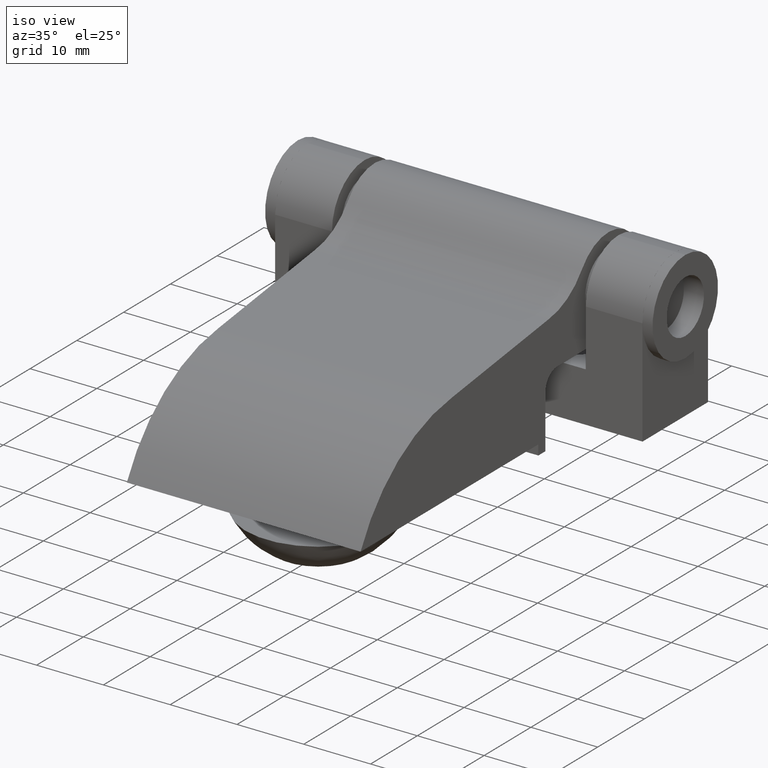
[diagram: clean part render]
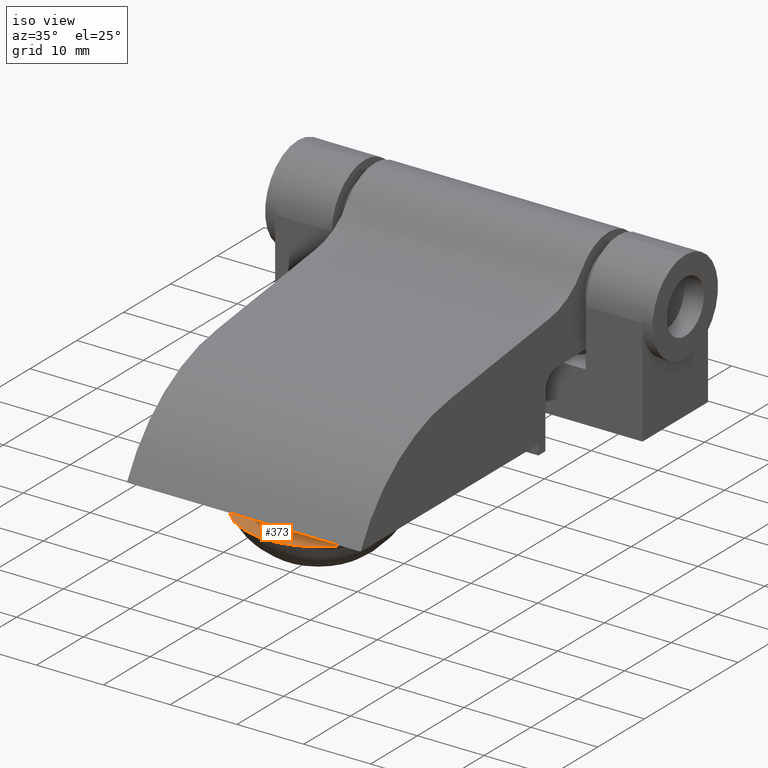
[diagram: same view with one face highlighted and labeled with its STEP entity id]
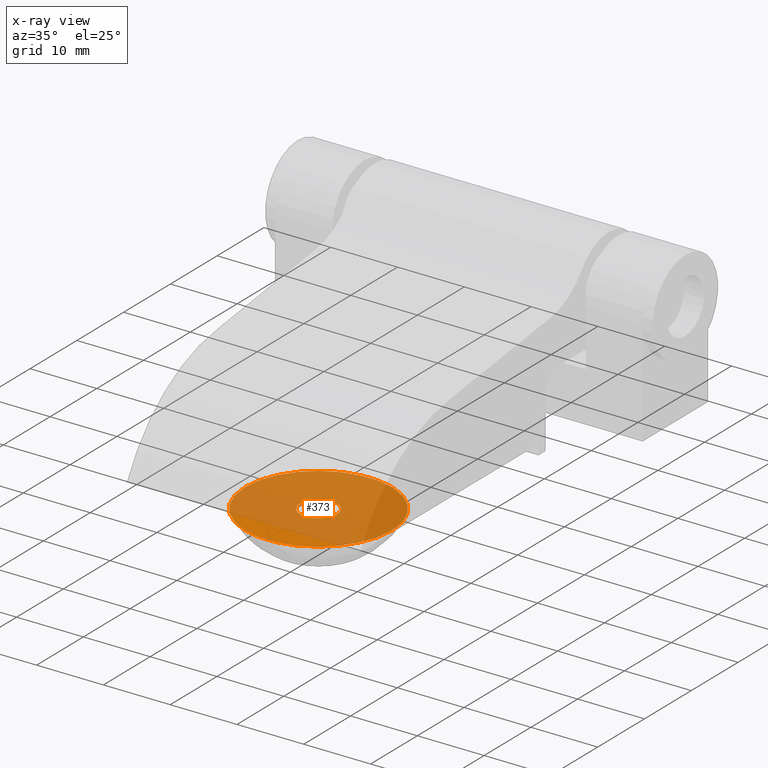
[diagram: x-ray of the same camera — body ghosted, the highlighted face saturated]
A machine part, iso view. The second image highlights one B-rep face of the part: STEP entity #373.
The next image is the same camera in x-ray: the body ghosted, the highlighted face saturated — about 88% of this face is hidden behind the body in this view.
In plain terms, the highlighted planar face has unit normal (0, 0, 1).
Its self-contained STEP definition (entity closure, byte-faithful):
#328=CARTESIAN_POINT('',(-22.0,-21.999999999987608,-4.999999999980672));
#329=DIRECTION('',(0.0,0.0,1.0));
#330=DIRECTION('',(0.0,-1.0,0.0));
#331=AXIS2_PLACEMENT_3D('',#328,#329,#330);
#332=PLANE('',#331);
#333=CARTESIAN_POINT('',(-10.999999999994657,-43.999999999987608,-4.999999999990902));
#334=VERTEX_POINT('',#333);
#335=CARTESIAN_POINT('',(10.999999999994657,-43.999999999987608,-4.999999999990902));
#336=VERTEX_POINT('',#335);
#337=CARTESIAN_POINT('',(0.0,-43.999999999987608,-4.999999999990902));
#338=DIRECTION('',(0.0,-1.836970E-016,-1.0));
#339=DIRECTION('',(1.0,0.0,0.0));
#340=AXIS2_PLACEMENT_3D('',#337,#338,#339);
#341=CIRCLE('',#340,10.999999999994657);
#342=EDGE_CURVE('',#334,#336,#341,.T.);
#343=ORIENTED_EDGE('',*,*,#342,.F.);
#344=CARTESIAN_POINT('',(0.0,-43.999999999987608,-4.999999999990902));
#345=DIRECTION('',(0.0,-1.836970E-016,-1.0));
#346=DIRECTION('',(1.0,0.0,0.0));
#347=AXIS2_PLACEMENT_3D('',#344,#345,#346);
#348=CIRCLE('',#347,10.999999999994657);
#349=EDGE_CURVE('',#336,#334,#348,.T.);
#350=ORIENTED_EDGE('',*,*,#349,.F.);
#351=EDGE_LOOP('',(#343,#350));
#352=FACE_OUTER_BOUND('',#351,.T.);
#353=CARTESIAN_POINT('',(2.749999999999886,-43.999999999987608,-4.999999999980671));
#354=VERTEX_POINT('',#353);
#355=CARTESIAN_POINT('',(-2.749999999999886,-43.999999999987608,-4.999999999980671));
#356=VERTEX_POINT('',#355);
#357=CARTESIAN_POINT('',(0.0,-43.999999999987608,-4.999999999980671));
#358=DIRECTION('',(0.0,-1.836970E-016,-1.0));
#359=DIRECTION('',(1.0,0.0,0.0));
#360=AXIS2_PLACEMENT_3D('',#357,#358,#359);
#361=CIRCLE('',#360,2.749999999999886);
#362=EDGE_CURVE('',#354,#356,#361,.T.);
#363=ORIENTED_EDGE('',*,*,#362,.T.);
#364=CARTESIAN_POINT('',(0.0,-43.999999999987608,-4.999999999980671));
#365=DIRECTION('',(0.0,-1.836970E-016,-1.0));
#366=DIRECTION('',(1.0,0.0,0.0));
#367=AXIS2_PLACEMENT_3D('',#364,#365,#366);
#368=CIRCLE('',#367,2.749999999999886);
#369=EDGE_CURVE('',#356,#354,#368,.T.);
#370=ORIENTED_EDGE('',*,*,#369,.T.);
#371=EDGE_LOOP('',(#363,#370));
#372=FACE_BOUND('',#371,.T.);
#373=ADVANCED_FACE('',(#352,#372),#332,.T.);